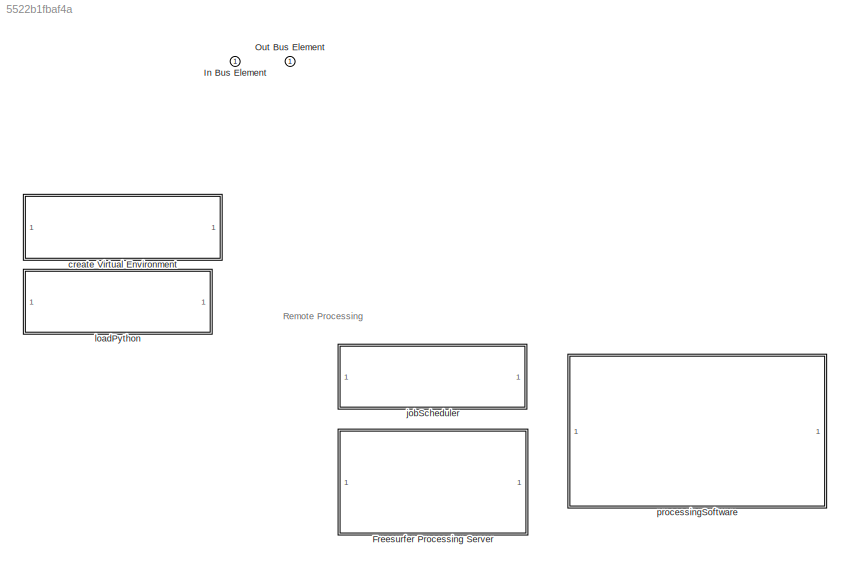
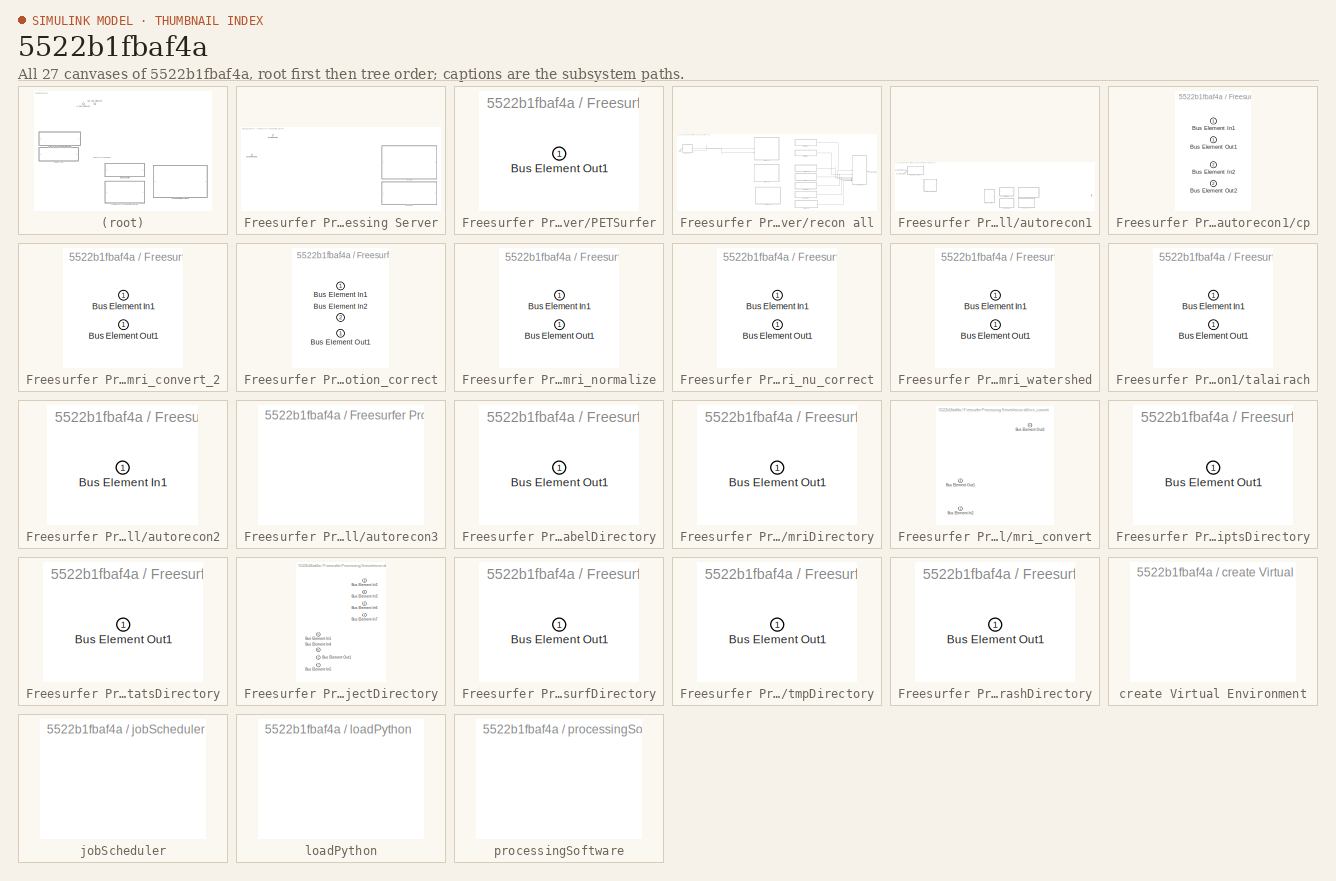
[diagram: thumbnail index - all 27 canvases of the model, root first then tree order]
MODEL slx_5522b1fbaf4a
KIND model
CONFIG AbsTol = auto
CONFIG EnableMultiTasking = off
CONFIG FixedStep = auto
CONFIG MaxStep = auto
CONFIG MinStep = auto
CONFIG RelTol = 1e-3
CONFIG SampleTimeConstraint = Unconstrained
CONFIG SolverName = FixedStepDiscrete
CONFIG StartTime = 0.0
CONFIG StopTime = 10.0
BLOCK [SubSystem] Freesurfer Processing Server
  PortSchema = {"entries":[{"content":{"headerSize":26,"margin":15,"minimumSpacing":25,"sides":[{"content":{"connectorIds":["In1"]},"type":"ConnectorPlacement.EquallySpacedRectSide","uuid":"d99db108-8c8a-4010-81b2-f142fbf318f5"},{"content":{"connectorIds":["Out1"],"side":"RIGHT"},"type":"ConnectorPlacement.EquallySpacedRectSide","uuid":"9190d96c-22e3-4cc9-a507-8f094dc67743"},{"content":{"side":"TOP"},"type":"Con...<+396ch>
BLOCK [Inport] Freesurfer Processing Server/Bus Element In1
  AllowServiceAccess = on
BLOCK [Outport] Freesurfer Processing Server/Bus Element Out1
BLOCK [SubSystem] Freesurfer Processing Server/PETSurfer
  PortSchema = {"entries":[{"content":{"headerSize":26,"margin":15,"minimumSpacing":25,"sides":[{"content":{},"type":"ConnectorPlacement.EquallySpacedRectSide","uuid":"d99db108-8c8a-4010-81b2-f142fbf318f5"},{"content":{"connectorIds":["Out1"],"side":"RIGHT"},"type":"ConnectorPlacement.EquallySpacedRectSide","uuid":"9190d96c-22e3-4cc9-a507-8f094dc67743"},{"content":{"side":"TOP"},"type":"ConnectorPlacement.Equall...<+248ch>  <repeated x8 — deduplicated; at blocks: PETSurfer, labelDirectory, mriDirectory, scriptsDirectory, statsDirectory, surfDirectory, tmpDirectory, trashDirectory>
BLOCK [Outport] Freesurfer Processing Server/PETSurfer/Bus Element Out1
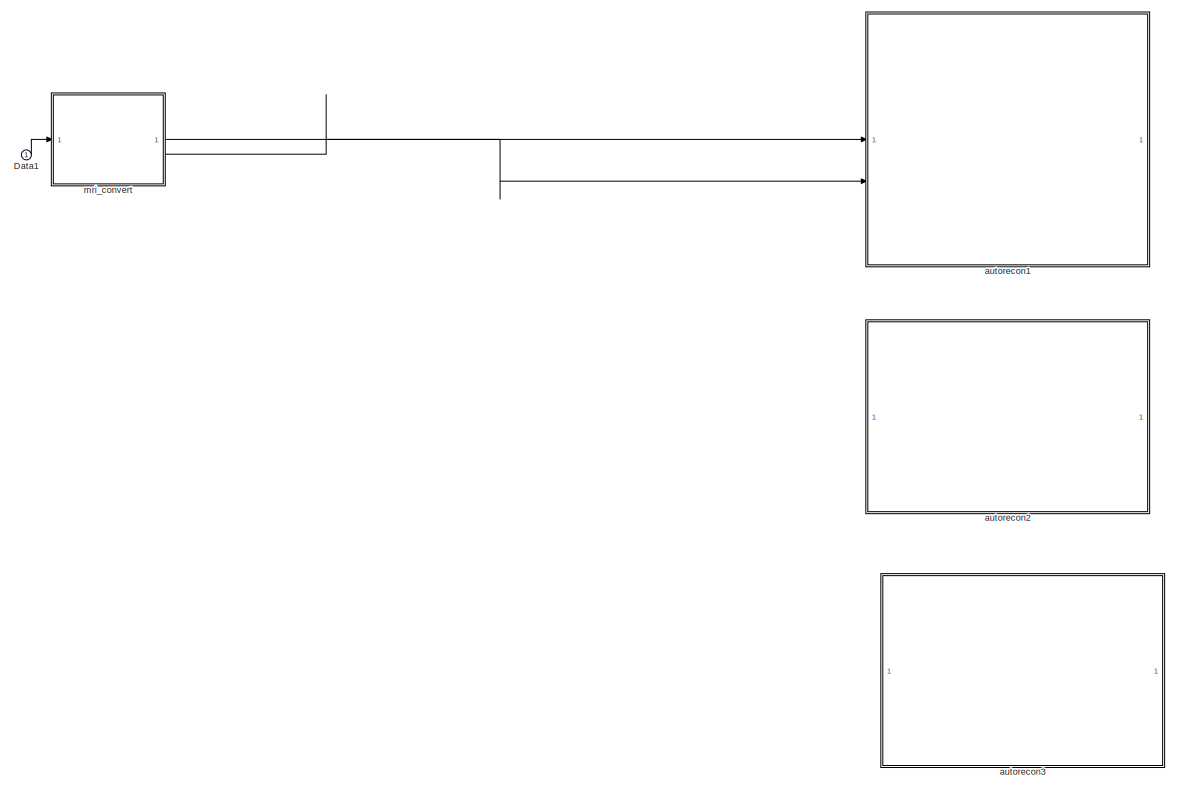
[diagram: Freesurfer Processing Server/recon all - part 1/2, left side, full height]
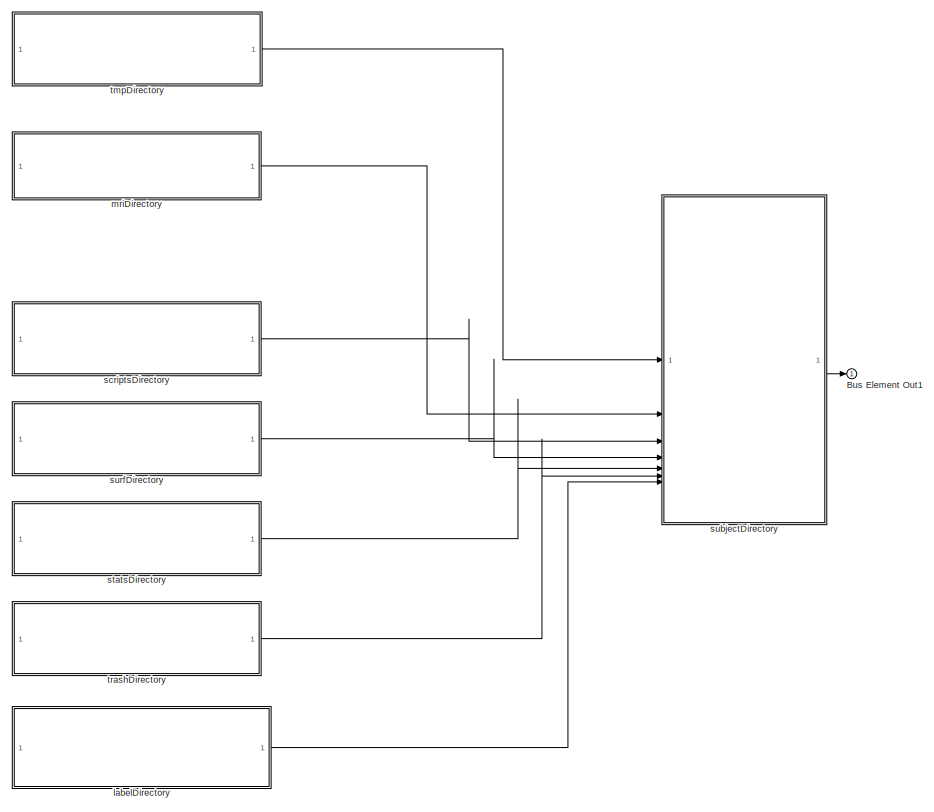
[diagram: Freesurfer Processing Server/recon all - part 2/2, right side, full height]
BLOCK [SubSystem] Freesurfer Processing Server/recon all
  PortSchema = {"entries":[{"content":{"headerSize":26,"margin":15,"minimumSpacing":25,"sides":[{"content":{"connectorIds":["In1"]},"type":"ConnectorPlacement.EquallySpacedRectSide","uuid":"1ec5f43e-86ec-4420-9dd8-c30b843d5131"},{"content":{"connectorIds":["Out1"],"side":"RIGHT"},"type":"ConnectorPlacement.EquallySpacedRectSide","uuid":"372e8174-47dc-4989-909e-f78b7a521fdc"},{"content":{"side":"TOP"},"type":"Con...<+270ch>
BLOCK [Outport] Freesurfer Processing Server/recon all/Bus Element Out1
BLOCK [Inport] Freesurfer Processing Server/recon all/Data1
  AllowServiceAccess = on
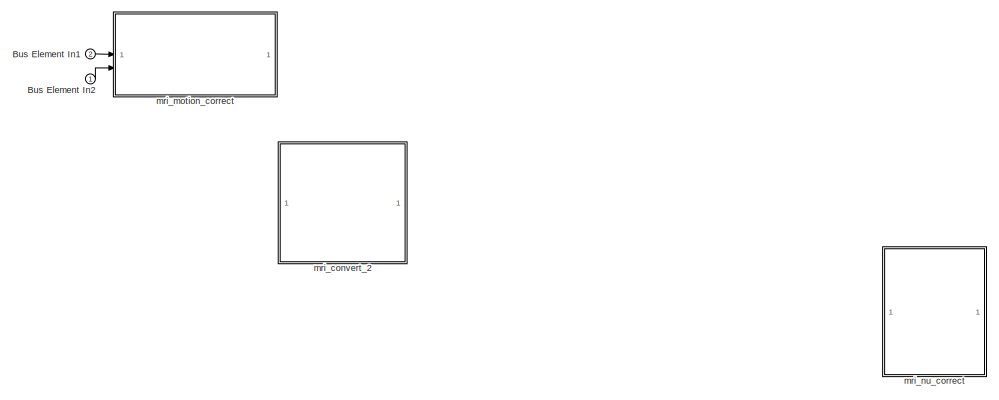
[diagram: Freesurfer Processing Server/recon all/autorecon1 - part 1/2, left side, full height]
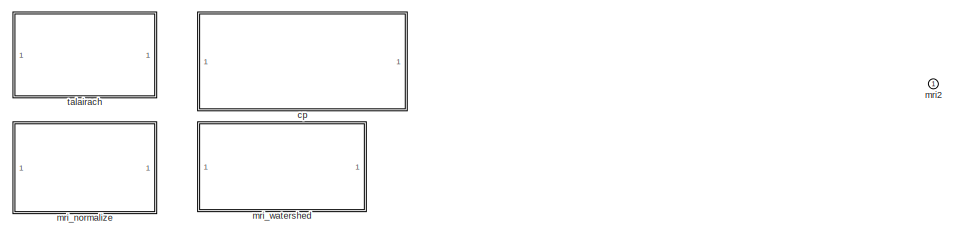
[diagram: Freesurfer Processing Server/recon all/autorecon1 - part 2/2, bottom right region]
BLOCK [SubSystem] Freesurfer Processing Server/recon all/autorecon1
  PortSchema = {"entries":[{"content":{"headerSize":26,"margin":15,"minimumSpacing":25,"sides":[{"content":{"connectorIds":["In1","In2"]},"type":"ConnectorPlacement.EquallySpacedRectSide","uuid":"1ec5f43e-86ec-4420-9dd8-c30b843d5131"},{"content":{"connectorIds":["Out1"],"side":"RIGHT"},"type":"ConnectorPlacement.EquallySpacedRectSide","uuid":"372e8174-47dc-4989-909e-f78b7a521fdc"},{"content":{"side":"TOP"},"type...<+276ch>
BLOCK [Inport] Freesurfer Processing Server/recon all/autorecon1/Bus Element In1
  Port = 2
BLOCK [Inport] Freesurfer Processing Server/recon all/autorecon1/Bus Element In2
BLOCK [SubSystem] Freesurfer Processing Server/recon all/autorecon1/cp
  PortSchema = {"entries":[{"content":{"headerSize":26,"margin":15,"minimumSpacing":25,"sides":[{"content":{"connectorIds":["In1","In2"]},"type":"ConnectorPlacement.EquallySpacedRectSide","uuid":"d99db108-8c8a-4010-81b2-f142fbf318f5"},{"content":{"connectorIds":["Out1","Out2"],"side":"RIGHT"},"type":"ConnectorPlacement.EquallySpacedRectSide","uuid":"9190d96c-22e3-4cc9-a507-8f094dc67743"},{"content":{"side":"TOP"...<+283ch>
BLOCK [Inport] Freesurfer Processing Server/recon all/autorecon1/cp/Bus Element In1
BLOCK [Inport] Freesurfer Processing Server/recon all/autorecon1/cp/Bus Element In2
  Port = 2
BLOCK [Outport] Freesurfer Processing Server/recon all/autorecon1/cp/Bus Element Out1
BLOCK [Outport] Freesurfer Processing Server/recon all/autorecon1/cp/Bus Element Out2
  Port = 2
BLOCK [Outport] Freesurfer Processing Server/recon all/autorecon1/mri2
BLOCK [SubSystem] Freesurfer Processing Server/recon all/autorecon1/mri_convert_2
  PortSchema = {"entries":[{"content":{"headerSize":26,"margin":15,"minimumSpacing":25,"sides":[{"content":{"connectorIds":["In1"]},"type":"ConnectorPlacement.EquallySpacedRectSide","uuid":"d99db108-8c8a-4010-81b2-f142fbf318f5"},{"content":{"connectorIds":["Out1"],"side":"RIGHT"},"type":"ConnectorPlacement.EquallySpacedRectSide","uuid":"9190d96c-22e3-4cc9-a507-8f094dc67743"},{"content":{"side":"TOP"},"type":"Con...<+270ch>  <repeated x5 — deduplicated; at blocks: mri_convert_2, mri_normalize, mri_nu_correct, mri_watershed, talairach>
BLOCK [Inport] Freesurfer Processing Server/recon all/autorecon1/mri_convert_2/Bus Element In1
BLOCK [Outport] Freesurfer Processing Server/recon all/autorecon1/mri_convert_2/Bus Element Out1
BLOCK [SubSystem] Freesurfer Processing Server/recon all/autorecon1/mri_motion_correct
  PortSchema = {"entries":[{"content":{"headerSize":26,"margin":15,"minimumSpacing":25,"sides":[{"content":{"connectorIds":["In1","In2"]},"type":"ConnectorPlacement.EquallySpacedRectSide","uuid":"d99db108-8c8a-4010-81b2-f142fbf318f5"},{"content":{"connectorIds":["Out1"],"side":"RIGHT"},"type":"ConnectorPlacement.EquallySpacedRectSide","uuid":"9190d96c-22e3-4cc9-a507-8f094dc67743"},{"content":{"side":"TOP"},"type...<+276ch>
BLOCK [Inport] Freesurfer Processing Server/recon all/autorecon1/mri_motion_correct/Bus Element In1
BLOCK [Inport] Freesurfer Processing Server/recon all/autorecon1/mri_motion_correct/Bus Element In2
  Port = 2
BLOCK [Outport] Freesurfer Processing Server/recon all/autorecon1/mri_motion_correct/Bus Element Out1
BLOCK [SubSystem] Freesurfer Processing Server/recon all/autorecon1/mri_normalize
BLOCK [Inport] Freesurfer Processing Server/recon all/autorecon1/mri_normalize/Bus Element In1
BLOCK [Outport] Freesurfer Processing Server/recon all/autorecon1/mri_normalize/Bus Element Out1
BLOCK [SubSystem] Freesurfer Processing Server/recon all/autorecon1/mri_nu_correct
BLOCK [Inport] Freesurfer Processing Server/recon all/autorecon1/mri_nu_correct/Bus Element In1
BLOCK [Outport] Freesurfer Processing Server/recon all/autorecon1/mri_nu_correct/Bus Element Out1
BLOCK [SubSystem] Freesurfer Processing Server/recon all/autorecon1/mri_watershed
BLOCK [Inport] Freesurfer Processing Server/recon all/autorecon1/mri_watershed/Bus Element In1
BLOCK [Outport] Freesurfer Processing Server/recon all/autorecon1/mri_watershed/Bus Element Out1
BLOCK [SubSystem] Freesurfer Processing Server/recon all/autorecon1/talairach
BLOCK [Inport] Freesurfer Processing Server/recon all/autorecon1/talairach/Bus Element In1
BLOCK [Outport] Freesurfer Processing Server/recon all/autorecon1/talairach/Bus Element Out1
BLOCK [SubSystem] Freesurfer Processing Server/recon all/autorecon2
  PortSchema = {"entries":[{"content":{"headerSize":26,"margin":15,"minimumSpacing":25,"sides":[{"content":{},"type":"ConnectorPlacement.EquallySpacedRectSide","uuid":"d99db108-8c8a-4010-81b2-f142fbf318f5"},{"content":{"side":"RIGHT"},"type":"ConnectorPlacement.EquallySpacedRectSide","uuid":"9190d96c-22e3-4cc9-a507-8f094dc67743"},{"content":{"connectorIds":["In1"],"side":"TOP"},"type":"ConnectorPlacement.Equally...<+247ch>
BLOCK [Inport] Freesurfer Processing Server/recon all/autorecon2/Bus Element In1
BLOCK [SubSystem] Freesurfer Processing Server/recon all/autorecon3
  PortSchema = {"entries":[{"content":{"headerSize":26,"margin":15,"minimumSpacing":25,"sides":[{"content":{},"type":"ConnectorPlacement.EquallySpacedRectSide","uuid":"d99db108-8c8a-4010-81b2-f142fbf318f5"},{"content":{"side":"RIGHT"},"type":"ConnectorPlacement.EquallySpacedRectSide","uuid":"9190d96c-22e3-4cc9-a507-8f094dc67743"},{"content":{"side":"TOP"},"type":"ConnectorPlacement.EquallySpacedRectSide","uuid":...<+224ch>
BLOCK [SubSystem] Freesurfer Processing Server/recon all/labelDirectory
BLOCK [Outport] Freesurfer Processing Server/recon all/labelDirectory/Bus Element Out1
BLOCK [SubSystem] Freesurfer Processing Server/recon all/mriDirectory
BLOCK [Outport] Freesurfer Processing Server/recon all/mriDirectory/Bus Element Out1
BLOCK [SubSystem] Freesurfer Processing Server/recon all/mri_convert
  PortSchema = {"entries":[{"content":{"headerSize":26,"margin":15,"minimumSpacing":25,"sides":[{"content":{"connectorIds":["In1"]},"type":"ConnectorPlacement.EquallySpacedRectSide","uuid":"d99db108-8c8a-4010-81b2-f142fbf318f5"},{"content":{"connectorIds":["Out1","Out2"],"side":"RIGHT"},"type":"ConnectorPlacement.EquallySpacedRectSide","uuid":"9190d96c-22e3-4cc9-a507-8f094dc67743"},{"content":{"side":"TOP"},"typ...<+277ch>
BLOCK [Inport] Freesurfer Processing Server/recon all/mri_convert/Bus Element In2
  AllowServiceAccess = on
BLOCK [Outport] Freesurfer Processing Server/recon all/mri_convert/Bus Element Out1
  Port = 2
BLOCK [Outport] Freesurfer Processing Server/recon all/mri_convert/Bus Element Out2
BLOCK [SubSystem] Freesurfer Processing Server/recon all/scriptsDirectory
BLOCK [Outport] Freesurfer Processing Server/recon all/scriptsDirectory/Bus Element Out1
BLOCK [SubSystem] Freesurfer Processing Server/recon all/statsDirectory
BLOCK [Outport] Freesurfer Processing Server/recon all/statsDirectory/Bus Element Out1
BLOCK [SubSystem] Freesurfer Processing Server/recon all/subjectDirectory
  PortSchema = {"entries":[{"content":{"headerSize":26,"margin":15,"minimumSpacing":25,"sides":[{"content":{"connectorIds":["In1","In2","In3","In4","In5","In6","In7"]},"type":"ConnectorPlacement.EquallySpacedRectSide","uuid":"d99db108-8c8a-4010-81b2-f142fbf318f5"},{"content":{"connectorIds":["Out1"],"side":"RIGHT"},"type":"ConnectorPlacement.EquallySpacedRectSide","uuid":"9190d96c-22e3-4cc9-a507-8f094dc67743"},{...<+306ch>
BLOCK [Inport] Freesurfer Processing Server/recon all/subjectDirectory/Bus Element In1
  Port = 5
BLOCK [Inport] Freesurfer Processing Server/recon all/subjectDirectory/Bus Element In2
  Port = 3
BLOCK [Inport] Freesurfer Processing Server/recon all/subjectDirectory/Bus Element In3
  Port = 4
BLOCK [Inport] Freesurfer Processing Server/recon all/subjectDirectory/Bus Element In4
  Port = 6
BLOCK [Inport] Freesurfer Processing Server/recon all/subjectDirectory/Bus Element In5
  Port = 7
BLOCK [Inport] Freesurfer Processing Server/recon all/subjectDirectory/Bus Element In6
  Port = 2
BLOCK [Inport] Freesurfer Processing Server/recon all/subjectDirectory/Bus Element In7
BLOCK [Outport] Freesurfer Processing Server/recon all/subjectDirectory/Bus Element Out1
BLOCK [SubSystem] Freesurfer Processing Server/recon all/surfDirectory
BLOCK [Outport] Freesurfer Processing Server/recon all/surfDirectory/Bus Element Out1
BLOCK [SubSystem] Freesurfer Processing Server/recon all/tmpDirectory
BLOCK [Outport] Freesurfer Processing Server/recon all/tmpDirectory/Bus Element Out1
BLOCK [SubSystem] Freesurfer Processing Server/recon all/trashDirectory
BLOCK [Outport] Freesurfer Processing Server/recon all/trashDirectory/Bus Element Out1
BLOCK [Inport] In Bus Element
  AllowServiceAccess = on
BLOCK [Outport] Out Bus Element
  AllowServiceAccess = on
BLOCK [SubSystem] create Virtual Environment
  PortSchema = {"entries":[{"content":{"headerSize":26,"margin":15,"minimumSpacing":25,"sides":[{"content":{},"type":"ConnectorPlacement.EquallySpacedRectSide","uuid":"a3539b9a-22db-4da3-b271-35b287ced3a1"},{"content":{"side":"RIGHT"},"type":"ConnectorPlacement.EquallySpacedRectSide","uuid":"72d9f298-5062-46d4-b3c5-f2fa85d7a7a6"},{"content":{"side":"TOP"},"type":"ConnectorPlacement.EquallySpacedRectSide","uuid":...<+224ch>  <repeated x4 — deduplicated; at blocks: create Virtual Environment, jobScheduler, loadPython, processingSoftware>
BLOCK [SubSystem] jobScheduler
BLOCK [SubSystem] loadPython
BLOCK [SubSystem] processingSoftware
ANNOTATION (root): Remote Processing
LINE Freesurfer Processing Server/recon all/Data1:1 -> Freesurfer Processing Server/recon all/mri_convert:1
LINE Freesurfer Processing Server/recon all/autorecon1/Bus Element In1:1 -> Freesurfer Processing Server/recon all/autorecon1/mri_motion_correct:1
LINE Freesurfer Processing Server/recon all/autorecon1/Bus Element In2:1 -> Freesurfer Processing Server/recon all/autorecon1/mri_motion_correct:2
LINE Freesurfer Processing Server/recon all/labelDirectory:1 -> Freesurfer Processing Server/recon all/subjectDirectory:7
LINE Freesurfer Processing Server/recon all/mriDirectory:1 -> Freesurfer Processing Server/recon all/subjectDirectory:2
LINE Freesurfer Processing Server/recon all/mri_convert:1 -> Freesurfer Processing Server/recon all/autorecon1:2
LINE Freesurfer Processing Server/recon all/mri_convert:2 -> Freesurfer Processing Server/recon all/autorecon1:1
LINE Freesurfer Processing Server/recon all/scriptsDirectory:1 -> Freesurfer Processing Server/recon all/subjectDirectory:3
LINE Freesurfer Processing Server/recon all/statsDirectory:1 -> Freesurfer Processing Server/recon all/subjectDirectory:5
LINE Freesurfer Processing Server/recon all/subjectDirectory:1 -> Freesurfer Processing Server/recon all/Bus Element Out1:1
LINE Freesurfer Processing Server/recon all/surfDirectory:1 -> Freesurfer Processing Server/recon all/subjectDirectory:4
LINE Freesurfer Processing Server/recon all/tmpDirectory:1 -> Freesurfer Processing Server/recon all/subjectDirectory:1
LINE Freesurfer Processing Server/recon all/trashDirectory:1 -> Freesurfer Processing Server/recon all/subjectDirectory:6
